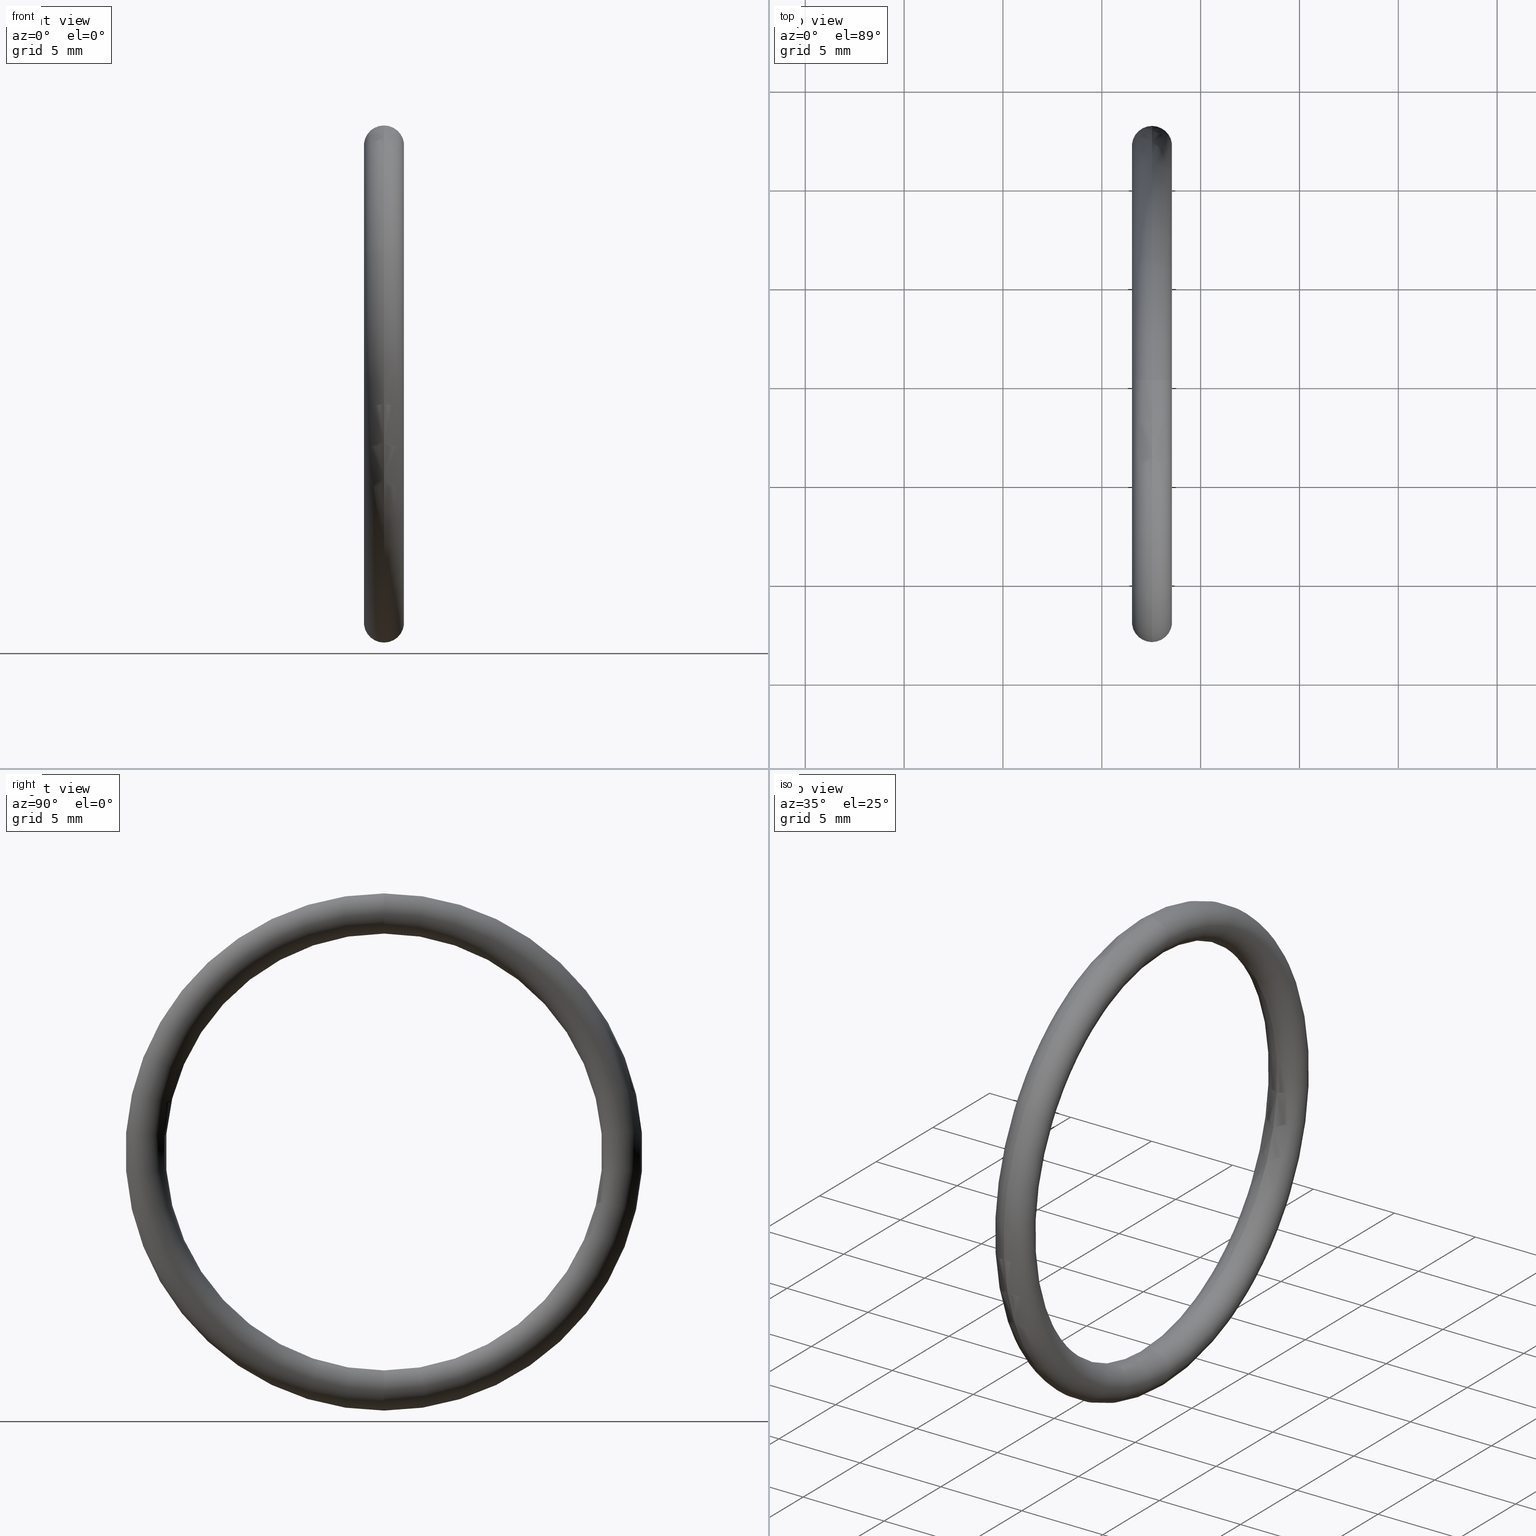
[diagram: canonical four-view strip — front | top / right | iso, engineering-drawing reading convention]
A machine part, canonical four-view strip (front | top / right | iso — engineering-drawing reading convention). The complete STEP part file that produces these views, byte-faithful:
ISO-10303-21;
HEADER;
FILE_DESCRIPTION (( 'STEP AP203' ),
    '1' );
FILE_NAME ('OM-25-SI.STEP',
    '2006-03-03T07:59:15',
    ( 'bay06' ),
    ( '' ),
    'SwSTEP 2.0',
    'SolidWorks 2008',
    '' );
FILE_SCHEMA (( 'CONFIG_CONTROL_DESIGN' ));
ENDSEC;

DATA;
#1 = MECHANICAL_CONTEXT ( 'NONE', #3, 'mechanical' ) ;
#2 = APPLICATION_PROTOCOL_DEFINITION ( 'international standard', 'config_control_design', 1994, #3 ) ;
#3 = APPLICATION_CONTEXT ( 'configuration controlled 3d designs of mechanical parts and assemblies' ) ;
#4 = PRODUCT_DEFINITION ( 'UNKNOWN', '', #192, #23 ) ;
#5 = PRODUCT ( 'OM-25-SI', 'OM-25-SI', '', ( #1 ) ) ;
#6 = PERSON ( 'UNSPECIFIED', 'UNSPECIFIED', 'UNSPECIFIED', ('UNSPECIFIED'), ('UNSPECIFIED'), ('UNSPECIFIED') ) ;
#7 = ORGANIZATION ( 'UNSPECIFIED', 'UNSPECIFIED', '' ) ;
#8 = PERSON_AND_ORGANIZATION ( #6, #7 ) ;
#9 = PERSON_AND_ORGANIZATION_ROLE ( 'design_owner' ) ;
#10 = CC_DESIGN_PERSON_AND_ORGANIZATION_ASSIGNMENT ( #8, #9, ( #5 ) ) ;
#11 = PERSON_AND_ORGANIZATION ( #6, #7 ) ;
#12 = APPROVAL_STATUS ( 'not_yet_approved' ) ;
#13 = APPROVAL ( #12, 'UNSPECIFIED' ) ;
#14 = APPROVAL_ROLE ( '' ) ;
#15 = APPROVAL_PERSON_ORGANIZATION ( #11, #13, #14 ) ;
#16 = DATE_AND_TIME ( #20, #18 ) ;
#17 = COORDINATED_UNIVERSAL_TIME_OFFSET ( 5, 30, .AHEAD. ) ;
#18 = LOCAL_TIME ( 13, 29, 15.00000000000000000, #17 ) ;
#19 = APPROVAL_DATE_TIME ( #16, #13 ) ;
#20 = CALENDAR_DATE ( 2006, 3, 3 ) ;
#21 = CC_DESIGN_APPROVAL ( #13, ( #4 ) ) ;
#22 = APPLICATION_CONTEXT ( 'configuration controlled 3d designs of mechanical parts and assemblies' ) ;
#23 = DESIGN_CONTEXT ( 'detailed design', #22, 'design' ) ;
#24 = APPLICATION_PROTOCOL_DEFINITION ( 'international standard', 'config_control_design', 1994, #22 ) ;
#25 = ADVANCED_FACE ( 'NONE', ( #52 ), #65, .T. ) ;
#26 = ORIENTED_EDGE ( 'NONE', *, *, #60, .F. ) ;
#27 = EDGE_CURVE ( 'NONE', #54, #53, #92, .T. ) ;
#28 = EDGE_LOOP ( 'NONE', ( #26, #40, #41, #34 ) ) ;
#29 = ORIENTED_EDGE ( 'NONE', *, *, #33, .F. ) ;
#30 = ORIENTED_EDGE ( 'NONE', *, *, #45, .F. ) ;
#31 = ORIENTED_EDGE ( 'NONE', *, *, #48, .F. ) ;
#32 = ORIENTED_EDGE ( 'NONE', *, *, #27, .T. ) ;
#33 = EDGE_CURVE ( 'NONE', #56, #54, #128, .T. ) ;
#34 = ORIENTED_EDGE ( 'NONE', *, *, #45, .T. ) ;
#35 = ORIENTED_EDGE ( 'NONE', *, *, #39, .T. ) ;
#36 = ORIENTED_EDGE ( 'NONE', *, *, #33, .T. ) ;
#37 = EDGE_LOOP ( 'NONE', ( #38, #55, #62, #57 ) ) ;
#38 = ORIENTED_EDGE ( 'NONE', *, *, #39, .F. ) ;
#39 = EDGE_CURVE ( 'NONE', #53, #54, #89, .T. ) ;
#40 = ORIENTED_EDGE ( 'NONE', *, *, #27, .F. ) ;
#41 = ORIENTED_EDGE ( 'NONE', *, *, #58, .T. ) ;
#42 = CLOSED_SHELL ( 'NONE', ( #50, #51, #43, #25 ) ) ;
#43 = ADVANCED_FACE ( 'NONE', ( #82 ), #85, .T. ) ;
#44 = EDGE_LOOP ( 'NONE', ( #31, #30, #36, #32 ) ) ;
#45 = EDGE_CURVE ( 'NONE', #56, #61, #134, .T. ) ;
#46 = ORIENTED_EDGE ( 'NONE', *, *, #63, .F. ) ;
#47 = ORIENTED_EDGE ( 'NONE', *, *, #48, .T. ) ;
#48 = EDGE_CURVE ( 'NONE', #61, #53, #119, .T. ) ;
#49 = MANIFOLD_SOLID_BREP ( 'NONE', #42 ) ;
#50 = ADVANCED_FACE ( 'NONE', ( #120 ), #122, .T. ) ;
#51 = ADVANCED_FACE ( 'NONE', ( #123 ), #94, .T. ) ;
#52 = FACE_OUTER_BOUND ( 'NONE', #28, .T. ) ;
#53 = VERTEX_POINT ( 'NONE', #105 ) ;
#54 = VERTEX_POINT ( 'NONE', #104 ) ;
#55 = ORIENTED_EDGE ( 'NONE', *, *, #60, .T. ) ;
#56 = VERTEX_POINT ( 'NONE', #103 ) ;
#57 = ORIENTED_EDGE ( 'NONE', *, *, #58, .F. ) ;
#58 = EDGE_CURVE ( 'NONE', #54, #56, #102, .T. ) ;
#59 = EDGE_LOOP ( 'NONE', ( #46, #47, #35, #29 ) ) ;
#60 = EDGE_CURVE ( 'NONE', #53, #61, #115, .T. ) ;
#61 = VERTEX_POINT ( 'NONE', #110 ) ;
#62 = ORIENTED_EDGE ( 'NONE', *, *, #63, .T. ) ;
#63 = EDGE_CURVE ( 'NONE', #61, #56, #67, .T. ) ;
#64 = AXIS2_PLACEMENT_3D ( 'NONE', #70, #69, #68 ) ;
#65 = TOROIDAL_SURFACE ( 'NONE', #64, 0.4749999999999999800, 0.04000000000000000100 ) ;
#66 = DIMENSIONAL_EXPONENTS ( 1.000000000000000000, 0.0000000000000000000, 0.0000000000000000000, 0.0000000000000000000, 0.0000000000000000000, 0.0000000000000000000, 0.0000000000000000000 ) ;
#67 = CIRCLE ( 'NONE', #72, 0.03999999999999998000 ) ;
#68 = DIRECTION ( 'NONE',  ( 0.0000000000000000000, 0.0000000000000000000, 1.000000000000000000 ) ) ;
#69 = DIRECTION ( 'NONE',  ( -1.000000000000000000, -0.0000000000000000000, -0.0000000000000000000 ) ) ;
#70 = CARTESIAN_POINT ( 'NONE',  ( 0.1000000000000000600, 0.0000000000000000000, 0.0000000000000000000 ) ) ;
#71 = CARTESIAN_POINT ( 'NONE',  ( 0.1000000000000000600, 0.0000000000000000000, 0.4749999999999999800 ) ) ;
#72 = AXIS2_PLACEMENT_3D ( 'NONE', #71, #78, #73 ) ;
#73 = DIRECTION ( 'NONE',  ( 0.0000000000000000000, 0.0000000000000000000, -1.000000000000000000 ) ) ;
#74 =( CONVERSION_BASED_UNIT ( 'INCH', #76 ) LENGTH_UNIT ( ) NAMED_UNIT ( #66 ) );
#75 =( NAMED_UNIT ( * ) PLANE_ANGLE_UNIT ( ) SI_UNIT ( $, .RADIAN. ) );
#76 = LENGTH_MEASURE_WITH_UNIT ( LENGTH_MEASURE( 0.02539999999999999900 ), #139 );
#77 =( GEOMETRIC_REPRESENTATION_CONTEXT ( 3 ) GLOBAL_UNCERTAINTY_ASSIGNED_CONTEXT ( ( #79 ) ) GLOBAL_UNIT_ASSIGNED_CONTEXT ( ( #74, #75, #81 ) ) REPRESENTATION_CONTEXT ( 'NONE', 'WORKASPACE' ) );
#78 = DIRECTION ( 'NONE',  ( 0.0000000000000000000, -1.000000000000000000, 0.0000000000000000000 ) ) ;
#79 = UNCERTAINTY_MEASURE_WITH_UNIT (LENGTH_MEASURE( 1.000000000000000100E-005 ), #74, 'distance_accuracy_value', 'NONE');
#80 = ADVANCED_BREP_SHAPE_REPRESENTATION ( 'OM-25-SI', ( #49, #142 ), #77 ) ;
#81 =( NAMED_UNIT ( * ) SI_UNIT ( $, .STERADIAN. ) SOLID_ANGLE_UNIT ( ) );
#82 = FACE_OUTER_BOUND ( 'NONE', #44, .T. ) ;
#83 = DIRECTION ( 'NONE',  ( 0.0000000000000000000, 0.0000000000000000000, 1.000000000000000000 ) ) ;
#84 = DIRECTION ( 'NONE',  ( -1.000000000000000000, -0.0000000000000000000, -0.0000000000000000000 ) ) ;
#85 = TOROIDAL_SURFACE ( 'NONE', #138, 0.4749999999999999800, 0.04000000000000000100 ) ;
#86 = DIRECTION ( 'NONE',  ( 0.0000000000000000000, -1.224646799147353000E-016, 1.000000000000000000 ) ) ;
#87 = DIRECTION ( 'NONE',  ( -0.0000000000000000000, 1.000000000000000000, 1.224646799147353200E-016 ) ) ;
#88 = AXIS2_PLACEMENT_3D ( 'NONE', #129, #87, #86 ) ;
#89 = CIRCLE ( 'NONE', #88, 0.03999999999999998000 ) ;
#90 = CARTESIAN_POINT ( 'NONE',  ( 0.1000000000000000600, 5.817072295949927200E-017, -0.4749999999999999800 ) ) ;
#91 = AXIS2_PLACEMENT_3D ( 'NONE', #90, #93, #130 ) ;
#92 = CIRCLE ( 'NONE', #91, 0.03999999999999998000 ) ;
#93 = DIRECTION ( 'NONE',  ( -0.0000000000000000000, 1.000000000000000000, 1.224646799147353200E-016 ) ) ;
#94 = TOROIDAL_SURFACE ( 'NONE', #109, 0.4749999999999999800, 0.04000000000000000100 ) ;
#95 = DIRECTION ( 'NONE',  ( 0.0000000000000000000, 0.0000000000000000000, 1.000000000000000000 ) ) ;
#96 = DIRECTION ( 'NONE',  ( -1.000000000000000000, -0.0000000000000000000, -0.0000000000000000000 ) ) ;
#97 = AXIS2_PLACEMENT_3D ( 'NONE', #124, #96, #95 ) ;
#98 = DIRECTION ( 'NONE',  ( 0.0000000000000000000, 0.0000000000000000000, 1.000000000000000000 ) ) ;
#99 = DIRECTION ( 'NONE',  ( -1.000000000000000000, -0.0000000000000000000, -0.0000000000000000000 ) ) ;
#100 = CARTESIAN_POINT ( 'NONE',  ( 0.1000000000000000600, 0.0000000000000000000, 0.0000000000000000000 ) ) ;
#101 = AXIS2_PLACEMENT_3D ( 'NONE', #100, #99, #98 ) ;
#102 = CIRCLE ( 'NONE', #101, 0.4350000000000000000 ) ;
#103 = CARTESIAN_POINT ( 'NONE',  ( 0.1000000000000000600, 0.0000000000000000000, 0.4350000000000000000 ) ) ;
#104 = CARTESIAN_POINT ( 'NONE',  ( 0.1000000000000000600, 5.327213576290986400E-017, -0.4350000000000000000 ) ) ;
#105 = CARTESIAN_POINT ( 'NONE',  ( 0.1000000000000000600, 6.306931015608868600E-017, -0.5150000000000000100 ) ) ;
#106 = DIRECTION ( 'NONE',  ( 0.0000000000000000000, 0.0000000000000000000, 1.000000000000000000 ) ) ;
#107 = DIRECTION ( 'NONE',  ( -1.000000000000000000, -0.0000000000000000000, -0.0000000000000000000 ) ) ;
#108 = CARTESIAN_POINT ( 'NONE',  ( 0.1000000000000000600, 0.0000000000000000000, 0.0000000000000000000 ) ) ;
#109 = AXIS2_PLACEMENT_3D ( 'NONE', #108, #107, #106 ) ;
#110 = CARTESIAN_POINT ( 'NONE',  ( 0.1000000000000000600, 0.0000000000000000000, 0.5150000000000000100 ) ) ;
#111 = DIRECTION ( 'NONE',  ( 0.0000000000000000000, 0.0000000000000000000, 1.000000000000000000 ) ) ;
#112 = DIRECTION ( 'NONE',  ( -1.000000000000000000, -0.0000000000000000000, -0.0000000000000000000 ) ) ;
#113 = CARTESIAN_POINT ( 'NONE',  ( 0.1000000000000000600, 0.0000000000000000000, 0.0000000000000000000 ) ) ;
#114 = AXIS2_PLACEMENT_3D ( 'NONE', #113, #112, #111 ) ;
#115 = CIRCLE ( 'NONE', #114, 0.5150000000000000100 ) ;
#116 = DIRECTION ( 'NONE',  ( -1.000000000000000000, -0.0000000000000000000, -0.0000000000000000000 ) ) ;
#117 = CARTESIAN_POINT ( 'NONE',  ( 0.1000000000000000600, 0.0000000000000000000, 0.0000000000000000000 ) ) ;
#118 = AXIS2_PLACEMENT_3D ( 'NONE', #117, #116, #125 ) ;
#119 = CIRCLE ( 'NONE', #118, 0.5150000000000000100 ) ;
#120 = FACE_OUTER_BOUND ( 'NONE', #37, .T. ) ;
#121 = DIRECTION ( 'NONE',  ( 0.0000000000000000000, 0.0000000000000000000, -1.000000000000000000 ) ) ;
#122 = TOROIDAL_SURFACE ( 'NONE', #97, 0.4749999999999999800, 0.04000000000000000100 ) ;
#123 = FACE_OUTER_BOUND ( 'NONE', #59, .T. ) ;
#124 = CARTESIAN_POINT ( 'NONE',  ( 0.1000000000000000600, 0.0000000000000000000, 0.0000000000000000000 ) ) ;
#125 = DIRECTION ( 'NONE',  ( 0.0000000000000000000, 0.0000000000000000000, 1.000000000000000000 ) ) ;
#126 = CARTESIAN_POINT ( 'NONE',  ( 0.1000000000000000600, 0.0000000000000000000, 0.0000000000000000000 ) ) ;
#127 = AXIS2_PLACEMENT_3D ( 'NONE', #126, #84, #83 ) ;
#128 = CIRCLE ( 'NONE', #127, 0.4350000000000000000 ) ;
#129 = CARTESIAN_POINT ( 'NONE',  ( 0.1000000000000000600, 5.817072295949927200E-017, -0.4749999999999999800 ) ) ;
#130 = DIRECTION ( 'NONE',  ( 0.0000000000000000000, -1.224646799147353000E-016, 1.000000000000000000 ) ) ;
#131 = DIRECTION ( 'NONE',  ( 0.0000000000000000000, -1.000000000000000000, 0.0000000000000000000 ) ) ;
#132 = CARTESIAN_POINT ( 'NONE',  ( 0.1000000000000000600, 0.0000000000000000000, 0.4749999999999999800 ) ) ;
#133 = AXIS2_PLACEMENT_3D ( 'NONE', #132, #131, #121 ) ;
#134 = CIRCLE ( 'NONE', #133, 0.03999999999999998000 ) ;
#135 = DIRECTION ( 'NONE',  ( 0.0000000000000000000, 0.0000000000000000000, 1.000000000000000000 ) ) ;
#136 = DIRECTION ( 'NONE',  ( -1.000000000000000000, -0.0000000000000000000, -0.0000000000000000000 ) ) ;
#137 = CARTESIAN_POINT ( 'NONE',  ( 0.1000000000000000600, 0.0000000000000000000, 0.0000000000000000000 ) ) ;
#138 = AXIS2_PLACEMENT_3D ( 'NONE', #137, #136, #135 ) ;
#139 =( LENGTH_UNIT ( ) NAMED_UNIT ( * ) SI_UNIT ( $, .METRE. ) );
#140 = DIRECTION ( 'NONE',  ( 1.000000000000000000, 0.0000000000000000000, 0.0000000000000000000 ) ) ;
#141 = DIRECTION ( 'NONE',  ( 0.0000000000000000000, 0.0000000000000000000, 1.000000000000000000 ) ) ;
#142 = AXIS2_PLACEMENT_3D ( 'NONE', #143, #141, #140 ) ;
#143 = CARTESIAN_POINT ( 'NONE',  ( 0.0000000000000000000, 0.0000000000000000000, 0.0000000000000000000 ) ) ;
#144 = CC_DESIGN_APPROVAL ( #172, ( #186 ) ) ;
#145 = CC_DESIGN_SECURITY_CLASSIFICATION ( #186, ( #192 ) ) ;
#146 = PRODUCT_RELATED_PRODUCT_CATEGORY ( 'detail', '', ( #5 ) ) ;
#147 = SHAPE_DEFINITION_REPRESENTATION ( #148, #80 ) ;
#148 = PRODUCT_DEFINITION_SHAPE ( 'NONE', 'NONE',  #4 ) ;
#149 = CC_DESIGN_PERSON_AND_ORGANIZATION_ASSIGNMENT ( #158, #195, ( #4 ) ) ;
#150 = CC_DESIGN_DATE_AND_TIME_ASSIGNMENT ( #193, #151, ( #4 ) ) ;
#151 = DATE_TIME_ROLE ( 'creation_date' ) ;
#152 = PERSON_AND_ORGANIZATION_ROLE ( 'creator' ) ;
#153 = PERSON_AND_ORGANIZATION ( #6, #7 ) ;
#154 = CC_DESIGN_APPROVAL ( #164, ( #192 ) ) ;
#155 = APPROVAL_DATE_TIME ( #156, #164 ) ;
#156 = DATE_AND_TIME ( #157, #160 ) ;
#157 = CALENDAR_DATE ( 2006, 3, 3 ) ;
#158 = PERSON_AND_ORGANIZATION ( #6, #7 ) ;
#159 = COORDINATED_UNIVERSAL_TIME_OFFSET ( 5, 30, .AHEAD. ) ;
#160 = LOCAL_TIME ( 13, 29, 15.00000000000000000, #161 ) ;
#161 = COORDINATED_UNIVERSAL_TIME_OFFSET ( 5, 30, .AHEAD. ) ;
#162 = APPROVAL_PERSON_ORGANIZATION ( #191, #164, #163 ) ;
#163 = APPROVAL_ROLE ( '' ) ;
#164 = APPROVAL ( #190, 'UNSPECIFIED' ) ;
#165 = APPROVAL_DATE_TIME ( #166, #172 ) ;
#166 = DATE_AND_TIME ( #167, #168 ) ;
#167 = CALENDAR_DATE ( 2006, 3, 3 ) ;
#168 = LOCAL_TIME ( 13, 29, 15.00000000000000000, #169 ) ;
#169 = COORDINATED_UNIVERSAL_TIME_OFFSET ( 5, 30, .AHEAD. ) ;
#170 = APPROVAL_PERSON_ORGANIZATION ( #174, #172, #171 ) ;
#171 = APPROVAL_ROLE ( '' ) ;
#172 = APPROVAL ( #173, 'UNSPECIFIED' ) ;
#173 = APPROVAL_STATUS ( 'not_yet_approved' ) ;
#174 = PERSON_AND_ORGANIZATION ( #6, #7 ) ;
#175 = CC_DESIGN_DATE_AND_TIME_ASSIGNMENT ( #177, #176, ( #186 ) ) ;
#176 = DATE_TIME_ROLE ( 'classification_date' ) ;
#177 = DATE_AND_TIME ( #178, #179 ) ;
#178 = CALENDAR_DATE ( 2006, 3, 3 ) ;
#179 = LOCAL_TIME ( 13, 29, 15.00000000000000000, #180 ) ;
#180 = COORDINATED_UNIVERSAL_TIME_OFFSET ( 5, 30, .AHEAD. ) ;
#181 = PERSON_AND_ORGANIZATION ( #6, #7 ) ;
#182 = CC_DESIGN_PERSON_AND_ORGANIZATION_ASSIGNMENT ( #153, #152, ( #192 ) ) ;
#183 = CC_DESIGN_PERSON_AND_ORGANIZATION_ASSIGNMENT ( #185, #184, ( #186 ) ) ;
#184 = PERSON_AND_ORGANIZATION_ROLE ( 'classification_officer' ) ;
#185 = PERSON_AND_ORGANIZATION ( #6, #7 ) ;
#186 = SECURITY_CLASSIFICATION ( '', '', #187 ) ;
#187 = SECURITY_CLASSIFICATION_LEVEL ( 'unclassified' ) ;
#188 = CC_DESIGN_PERSON_AND_ORGANIZATION_ASSIGNMENT ( #181, #189, ( #192 ) ) ;
#189 = PERSON_AND_ORGANIZATION_ROLE ( 'design_supplier' ) ;
#190 = APPROVAL_STATUS ( 'not_yet_approved' ) ;
#191 = PERSON_AND_ORGANIZATION ( #6, #7 ) ;
#192 = PRODUCT_DEFINITION_FORMATION_WITH_SPECIFIED_SOURCE ( 'ANY', '', #5, .NOT_KNOWN. ) ;
#193 = DATE_AND_TIME ( #194, #196 ) ;
#194 = CALENDAR_DATE ( 2006, 3, 3 ) ;
#195 = PERSON_AND_ORGANIZATION_ROLE ( 'creator' ) ;
#196 = LOCAL_TIME ( 13, 29, 15.00000000000000000, #159 ) ;
ENDSEC;
END-ISO-10303-21;
